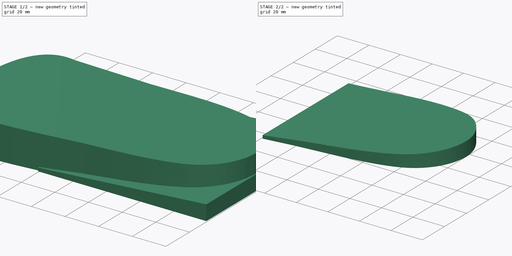
[diagram: build sequence overview — one tinted view per stage of 2, left to right]
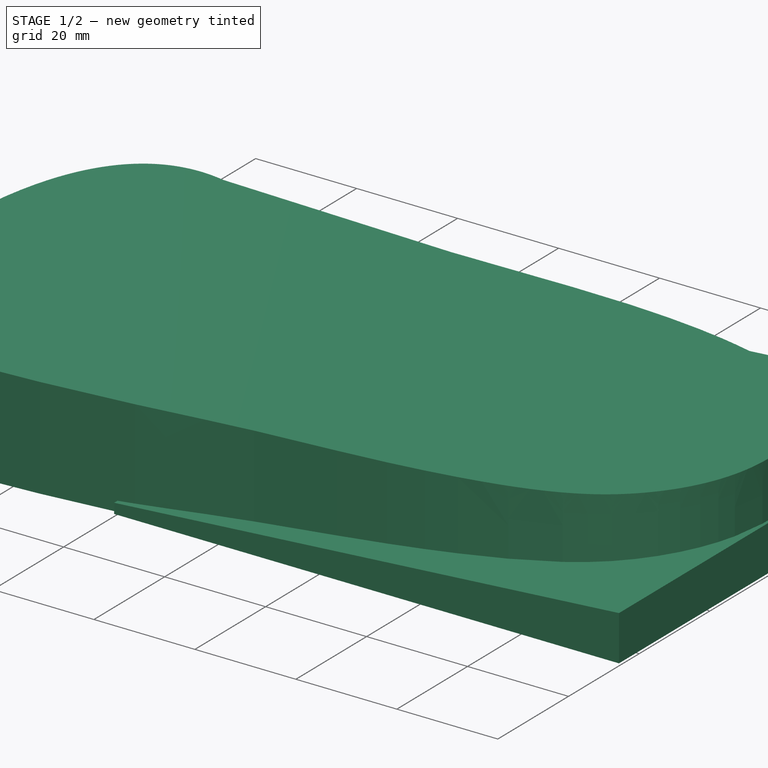
[diagram: stage 1 of 2 — iso view after this stage's code; geometry added in this stage tinted green]
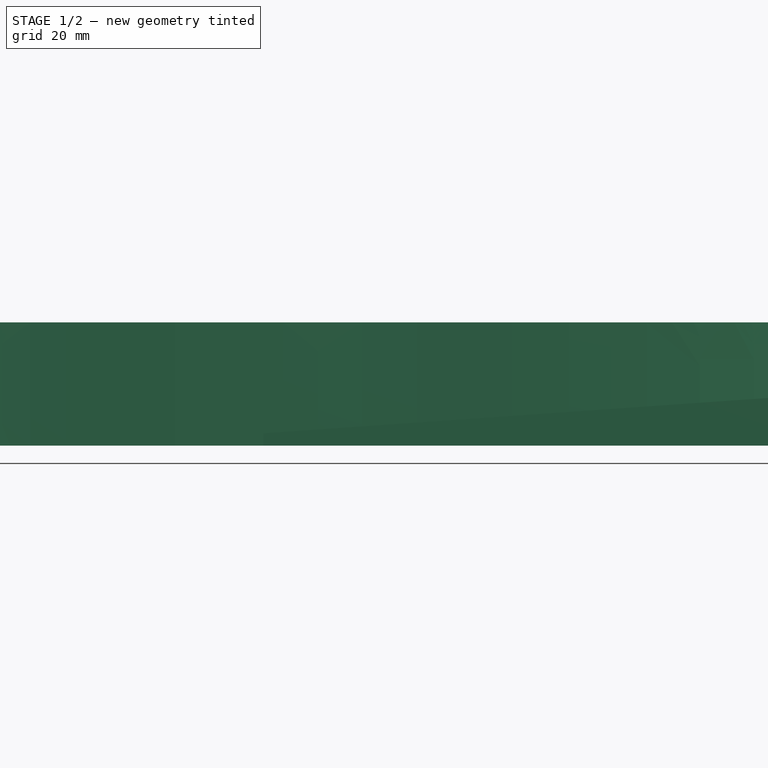
[diagram: stage 1 of 2 — front view after this stage's code; geometry added in this stage tinted green]
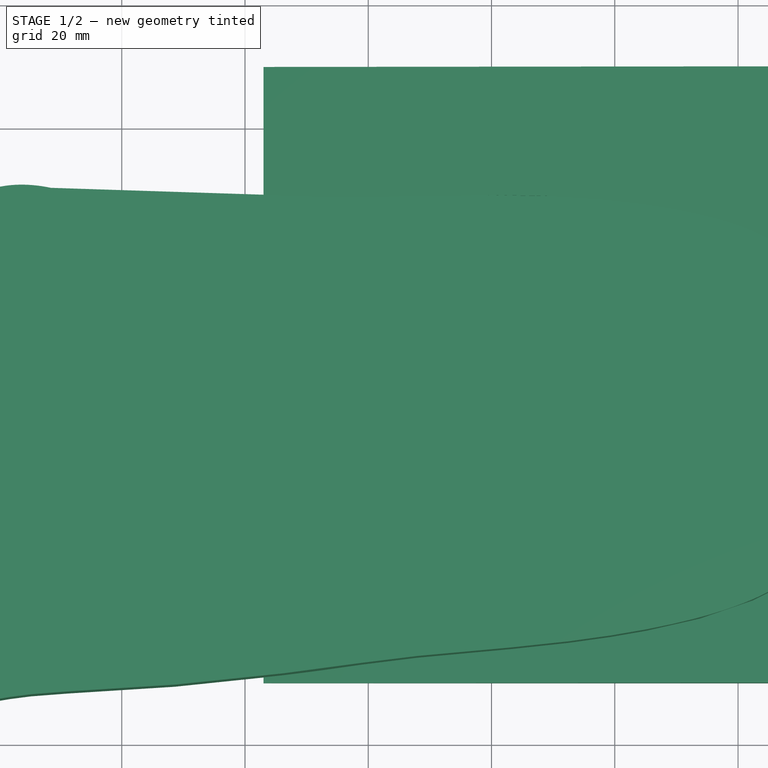
[diagram: stage 1 of 2 — top view after this stage's code; geometry added in this stage tinted green]
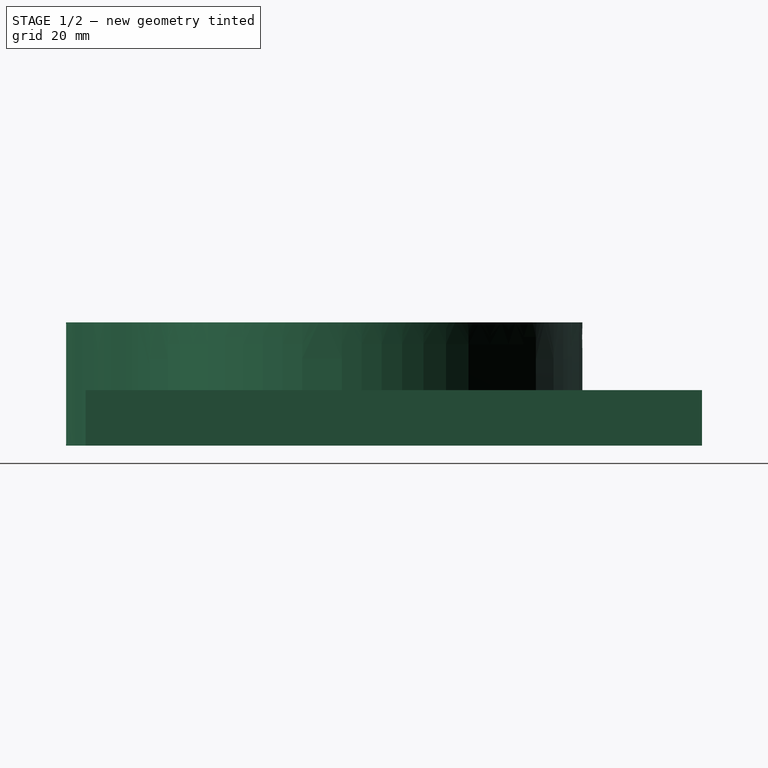
[diagram: stage 1 of 2 — right view after this stage's code; geometry added in this stage tinted green]
FCSTD DOCUMENT  (FreeCAD 0.21R33771 (Git))
Label: shoe_sole
License: All rights reserved
LicenseURL: http://en.wikipedia.org/wiki/All_rights_reserved
objects: Sketcher::SketchObject×2, Part::Extrusion×2, Image::ImagePlane×1, Part::MultiCommon×1
note: 5 computed .brp shape members not serialized (recipe doc carries the construction recipe); baked Part::Feature solids carry a one-line shape summary decoded from their .brp

FEATURE [Image::ImagePlane] IMG_20240705_200953065
  XSize = 395.326
  YSize = 296.494
FEATURE [Sketcher::SketchObject] Sketch
  FullyConstrained = false
  sketch-geometry (37):
    g0-g18: Circle x19 (B-spline internal-alignment scaffolding for g19; pole/knot coordinates omitted)
    g19: BSplineCurve PolesCount=20 KnotsCount=18 Degree=3 IsPeriodic=0
    g20-g36: GeomPoint x17 (B-spline internal-alignment scaffolding for g19; pole/knot coordinates omitted)
  constraints (9):
    c: Weight(g0) = 1
    c: Equal(g0, g1-g16) x16
    c: PointOnObject(g16,g-2)
    c: Equal(g0,g17)
    c: PointOnObject(g17,g-2)
    c: Equal(g0,g18)
    c: Coincident(g19,g0)
    c: InternalAlignment(g0-g18 -> g19) x19
    c: InternalAlignment(g20-g36 -> g19) x17
FEATURE [Part::Extrusion] Extrude
  Base = -> Sketch
  Dir = (0,0,1)
  DirMode = 2
  FaceMakerClass = Part::FaceMakerBullseye
  LengthFwd = 20
  LengthRev = 0
  Solid = true
  Symmetric = false
FEATURE [Sketcher::SketchObject] Sketch001
  FullyConstrained = true
  Placement = pos=(0,0,0) rot=(1,0,0;1.5708rad)
  sketch-geometry (4):
    g0: LineSegment StartX=163 StartY=9 StartZ=0 EndX=163 EndY=0 EndZ=0
    g1: LineSegment StartX=63 StartY=2 StartZ=0 EndX=63 EndY=0 EndZ=0
    g2: LineSegment StartX=63 StartY=2 StartZ=0 EndX=163 EndY=9 EndZ=0
    g3: LineSegment StartX=63 StartY=0 StartZ=0 EndX=163 EndY=0 EndZ=0
  constraints (12):
    c: Coincident(g0,g2)
    c: Vertical(g0)
    c: Coincident(g3,g0)
    c: DistanceY(g0,g0) = 9
    c: Vertical(g1)
    c: Horizontal(g3)
    c: Coincident(g3,g1)
    c: DistanceX(g3,g3) = 100
    c: Coincident(g1,g2)
    c: PointOnObject(g0,g-1)
    c: DistanceY(g1,g1) = 2
    c: DistanceX(g-1,g0) = 163
FEATURE [Part::Extrusion] Extrude001
  Base = -> Sketch001
  Dir = (0,-1,2e-16)
  DirMode = 2
  FaceMakerClass = Part::FaceMakerBullseye
  LengthFwd = 100
  LengthRev = 0
  Solid = true
  Symmetric = true
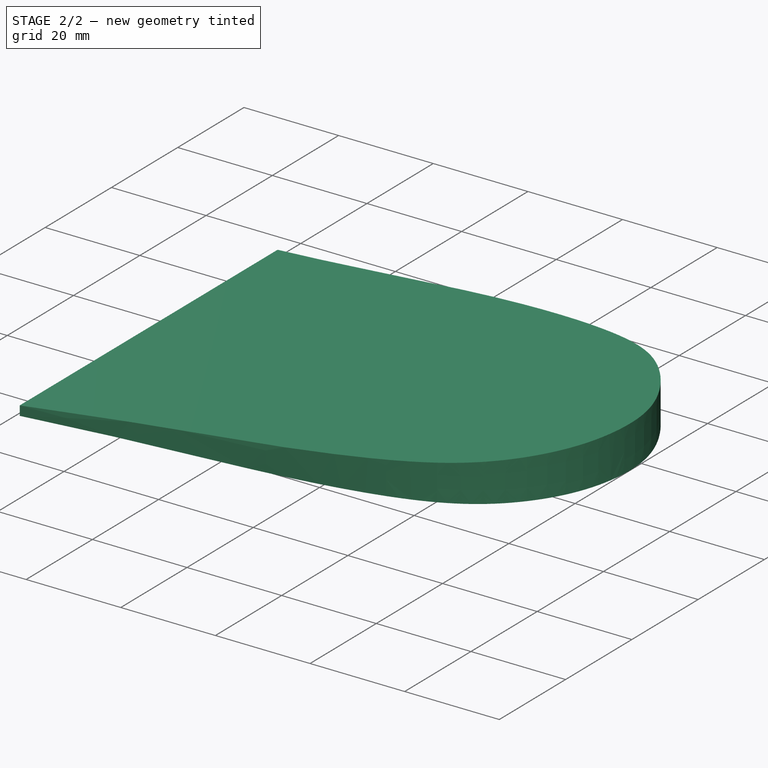
[diagram: stage 2 of 2 — iso view after this stage's code; geometry added in this stage tinted green]
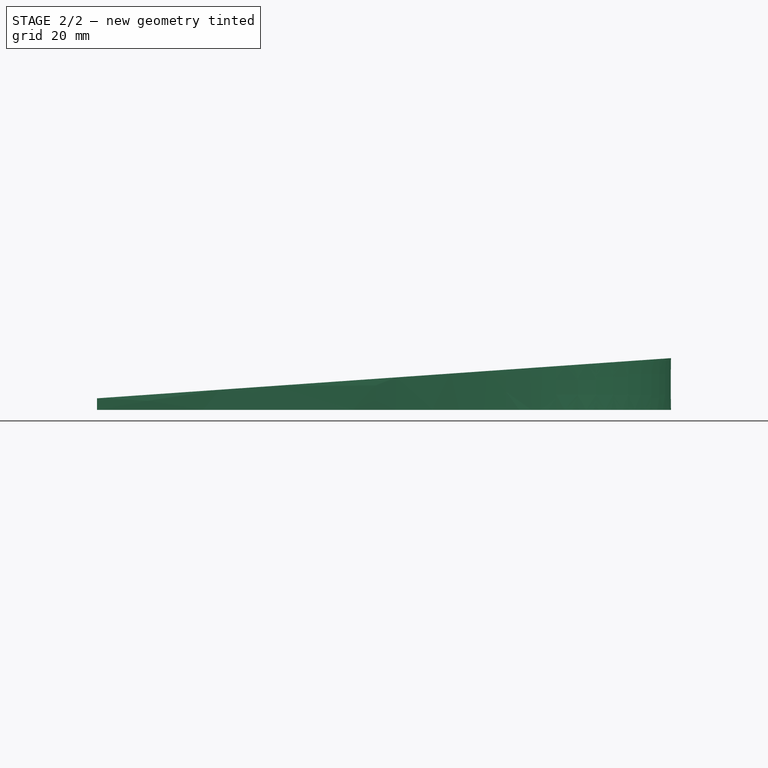
[diagram: stage 2 of 2 — front view after this stage's code; geometry added in this stage tinted green]
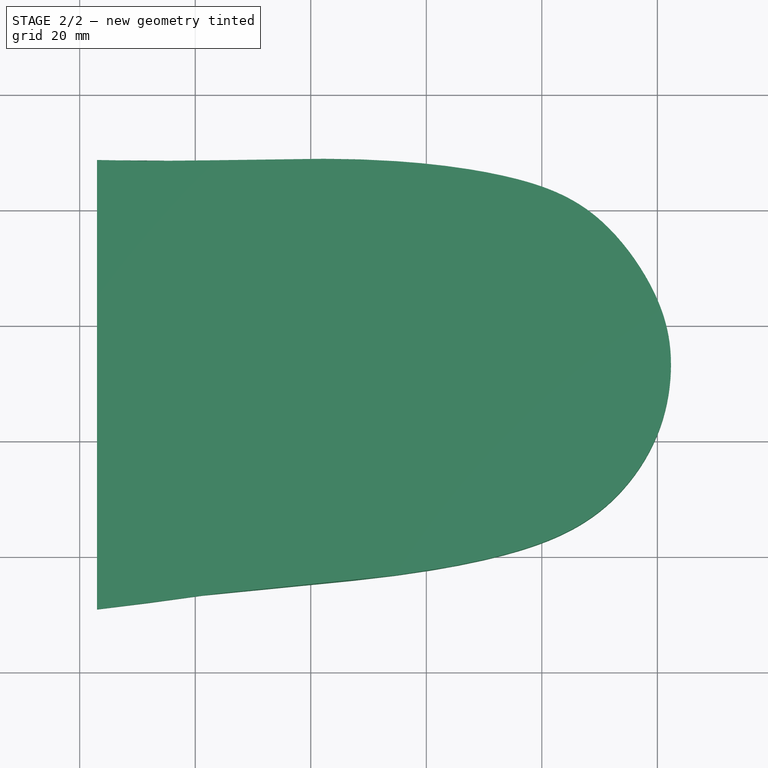
[diagram: stage 2 of 2 — top view after this stage's code; geometry added in this stage tinted green]
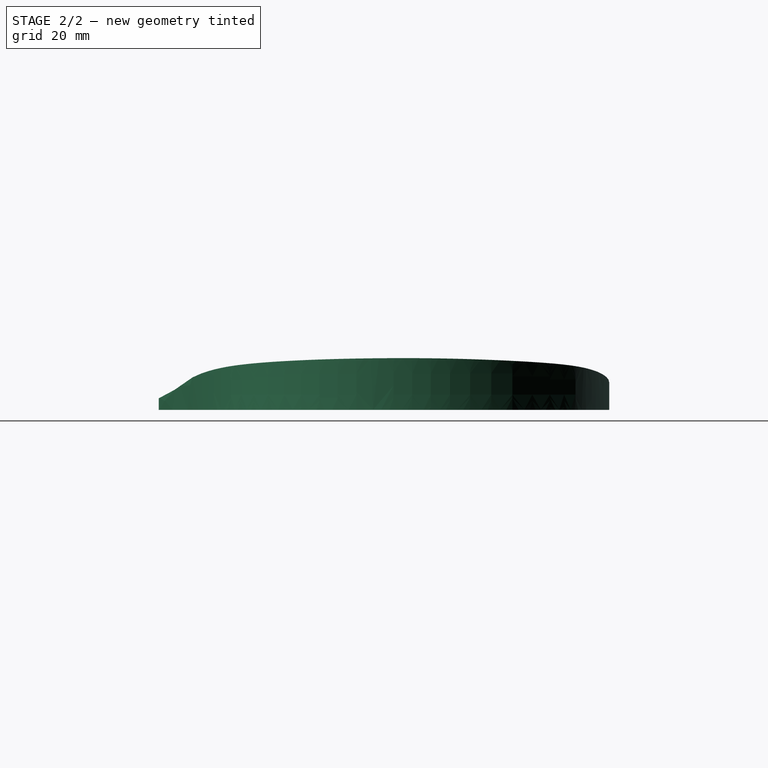
[diagram: stage 2 of 2 — right view after this stage's code; geometry added in this stage tinted green]
FEATURE [Part::MultiCommon] Common  label="sole common"
  Shapes = -> [Extrude,Extrude001]
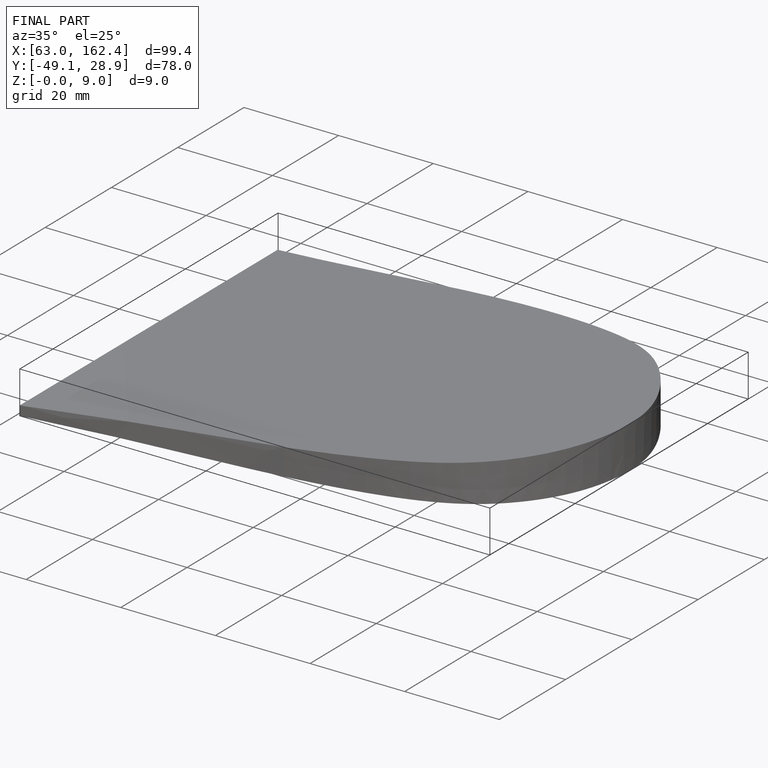
[diagram: finished part — iso view with bounding-box wireframe]
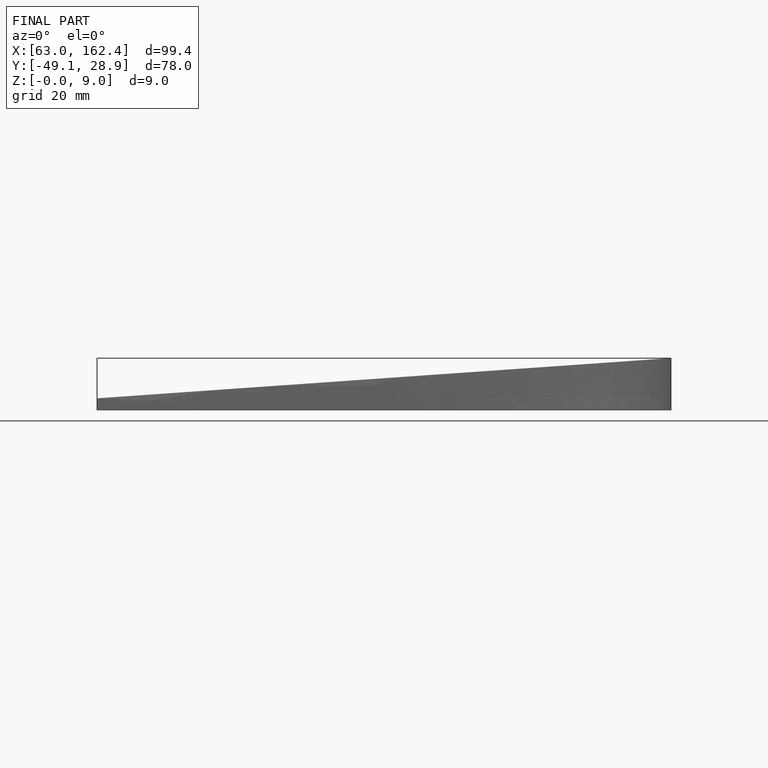
[diagram: finished part — front view with bounding-box wireframe]
